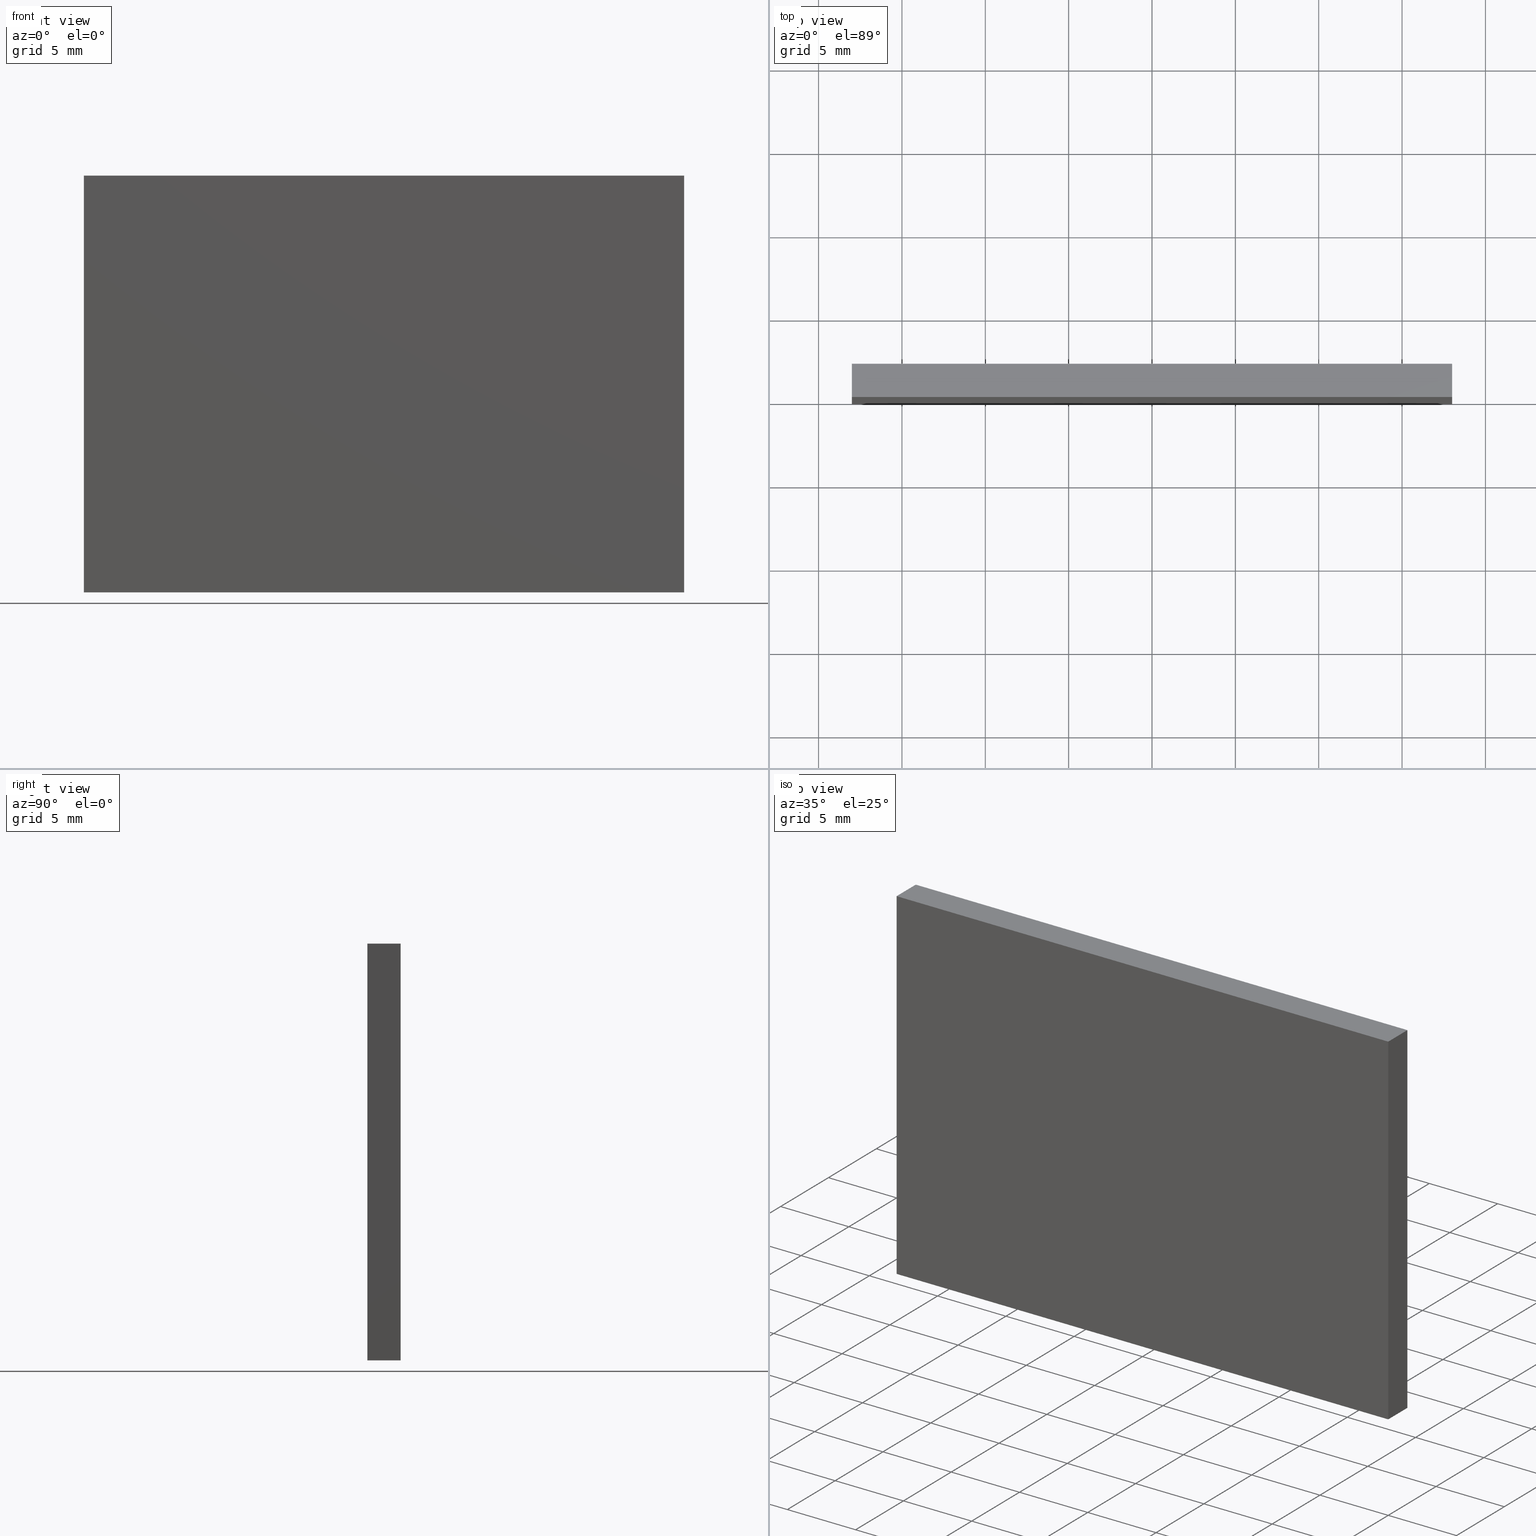
[diagram: canonical four-view strip — front | top / right | iso, engineering-drawing reading convention]
A machine part, canonical four-view strip (front | top / right | iso — engineering-drawing reading convention). The complete STEP part file that produces these views, byte-faithful:
ISO-10303-21;
HEADER;
FILE_DESCRIPTION (( 'STEP AP214' ),
    '1' );
FILE_NAME ('238530.STEP',
    '2019-07-31T07:25:36',
    ( 'user' ),
    ( '΢���й�' ),
    'SwSTEP 2.0',
    'SolidWorks 2016',
    '' );
FILE_SCHEMA (( 'AUTOMOTIVE_DESIGN' ));
ENDSEC;

DATA;
#1 = PRODUCT_DEFINITION ( 'δ֪', '', #170, #173 ) ;
#2 = VECTOR ( 'NONE', #142, 1000.000000000000000 ) ;
#3 = VERTEX_POINT ( 'NONE', #62 ) ;
#4 = EDGE_CURVE ( 'NONE', #95, #122, #116, .T. ) ;
#5 = DIRECTION ( 'NONE',  ( 0.0000000000000000000, 1.000000000000000000, 0.0000000000000000000 ) ) ;
#6 = STYLED_ITEM ( 'NONE', ( #155 ), #44 ) ;
#7 = DIRECTION ( 'NONE',  ( -1.000000000000000000, 0.0000000000000000000, 2.775557561562891400E-016 ) ) ;
#8 = ORIENTED_EDGE ( 'NONE', *, *, #138, .T. ) ;
#9 =( LENGTH_UNIT ( ) NAMED_UNIT ( * ) SI_UNIT ( .MILLI., .METRE. ) );
#10 = ADVANCED_FACE ( 'NONE', ( #156 ), #88, .F. ) ;
#11 = PLANE ( 'NONE',  #83 ) ;
#12 = FACE_OUTER_BOUND ( 'NONE', #63, .T. ) ;
#13 = CARTESIAN_POINT ( 'NONE',  ( -18.00000000000000400, 2.000000000000000000, 12.50000000000000200 ) ) ;
#14 = FILL_AREA_STYLE_COLOUR ( '', #37 ) ;
#15 = EDGE_LOOP ( 'NONE', ( #98, #82, #75, #50 ) ) ;
#16 = PRESENTATION_STYLE_ASSIGNMENT (( #186 ) ) ;
#17 = VECTOR ( 'NONE', #43, 1000.000000000000000 ) ;
#18 = ORIENTED_EDGE ( 'NONE', *, *, #125, .F. ) ;
#19 = AXIS2_PLACEMENT_3D ( 'NONE', #151, #45, #133 ) ;
#20 = LINE ( 'NONE', #89, #17 ) ;
#21 = VERTEX_POINT ( 'NONE', #117 ) ;
#22 = DIRECTION ( 'NONE',  ( 0.0000000000000000000, 0.0000000000000000000, 1.000000000000000000 ) ) ;
#23 = DIRECTION ( 'NONE',  ( -0.0000000000000000000, -1.000000000000000000, -0.0000000000000000000 ) ) ;
#24 = LINE ( 'NONE', #72, #107 ) ;
#25 = DIRECTION ( 'NONE',  ( -1.000000000000000000, -0.0000000000000000000, -0.0000000000000000000 ) ) ;
#26 = DIRECTION ( 'NONE',  ( -2.775557561562891400E-016, -0.0000000000000000000, -1.000000000000000000 ) ) ;
#27 = UNCERTAINTY_MEASURE_WITH_UNIT (LENGTH_MEASURE( 1.000000000000000100E-005 ), #9, 'distance_accuracy_value', 'NONE');
#28 = CARTESIAN_POINT ( 'NONE',  ( -18.00000000000000400, 2.000000000000000000, -12.49999999999999800 ) ) ;
#29 = DIRECTION ( 'NONE',  ( -1.000000000000000000, -0.0000000000000000000, -0.0000000000000000000 ) ) ;
#30 = ORIENTED_EDGE ( 'NONE', *, *, #51, .F. ) ;
#31 = SURFACE_SIDE_STYLE ('',( #111 ) ) ;
#32 = DIRECTION ( 'NONE',  ( 1.000000000000000000, 0.0000000000000000000, 0.0000000000000000000 ) ) ;
#33 =( GEOMETRIC_REPRESENTATION_CONTEXT ( 3 ) GLOBAL_UNCERTAINTY_ASSIGNED_CONTEXT ( ( #168 ) ) GLOBAL_UNIT_ASSIGNED_CONTEXT ( ( #91, #200, #106 ) ) REPRESENTATION_CONTEXT ( 'NONE', 'WORKASPACE' ) );
#34 = ORIENTED_EDGE ( 'NONE', *, *, #4, .F. ) ;
#35 = SHAPE_DEFINITION_REPRESENTATION ( #153, #77 ) ;
#36 = LINE ( 'NONE', #60, #110 ) ;
#37 = COLOUR_RGB ( '',1.000000000000000000, 1.000000000000000000, 1.000000000000000000 ) ;
#38 = EDGE_CURVE ( 'NONE', #21, #152, #195, .T. ) ;
#39 = CARTESIAN_POINT ( 'NONE',  ( -18.00000000000000400, 0.0000000000000000000, -12.49999999999999800 ) ) ;
#40 = PLANE ( 'NONE',  #123 ) ;
#41 = ORIENTED_EDGE ( 'NONE', *, *, #47, .F. ) ;
#42 = EDGE_LOOP ( 'NONE', ( #167, #18, #188, #34 ) ) ;
#43 = DIRECTION ( 'NONE',  ( 0.0000000000000000000, 0.0000000000000000000, 1.000000000000000000 ) ) ;
#44 = MANIFOLD_SOLID_BREP ( '͹̨-����1', #79 ) ;
#45 = DIRECTION ( 'NONE',  ( 1.000000000000000000, 0.0000000000000000000, 0.0000000000000000000 ) ) ;
#46 = PRESENTATION_LAYER_ASSIGNMENT (  '', '', ( #76 ) ) ;
#47 = EDGE_CURVE ( 'NONE', #162, #122, #137, .T. ) ;
#48 = SURFACE_SIDE_STYLE ('',( #189 ) ) ;
#49 = APPLICATION_CONTEXT ( 'automotive_design' ) ;
#50 = ORIENTED_EDGE ( 'NONE', *, *, #67, .T. ) ;
#51 = EDGE_CURVE ( 'NONE', #162, #21, #20, .T. ) ;
#52 = EDGE_LOOP ( 'NONE', ( #85, #109, #185, #139 ) ) ;
#53 = LINE ( 'NONE', #39, #132 ) ;
#54 = MECHANICAL_DESIGN_GEOMETRIC_PRESENTATION_REPRESENTATION (  '', ( #76 ), #33 ) ;
#55 = FILL_AREA_STYLE_COLOUR ( '', #174 ) ;
#56 = ORIENTED_EDGE ( 'NONE', *, *, #67, .F. ) ;
#57 = ADVANCED_FACE ( 'NONE', ( #59 ), #194, .F. ) ;
#58 =( NAMED_UNIT ( * ) SI_UNIT ( $, .STERADIAN. ) SOLID_ANGLE_UNIT ( ) );
#59 = FACE_OUTER_BOUND ( 'NONE', #42, .T. ) ;
#60 = CARTESIAN_POINT ( 'NONE',  ( 17.99999999999999600, 2.000000000000000000, -12.49999999999999800 ) ) ;
#61 = CARTESIAN_POINT ( 'NONE',  ( -18.00000000000000400, 0.0000000000000000000, -12.49999999999999800 ) ) ;
#62 = CARTESIAN_POINT ( 'NONE',  ( 17.99999999999999600, 2.000000000000000000, -12.49999999999999800 ) ) ;
#63 = EDGE_LOOP ( 'NONE', ( #176, #8, #104, #112 ) ) ;
#64 = MECHANICAL_DESIGN_GEOMETRIC_PRESENTATION_REPRESENTATION (  '', ( #6 ), #69 ) ;
#65 = ORIENTED_EDGE ( 'NONE', *, *, #138, .F. ) ;
#66 = ORIENTED_EDGE ( 'NONE', *, *, #47, .T. ) ;
#67 = EDGE_CURVE ( 'NONE', #21, #171, #181, .T. ) ;
#68 = DIRECTION ( 'NONE',  ( 0.0000000000000000000, -0.0000000000000000000, 1.000000000000000000 ) ) ;
#69 =( GEOMETRIC_REPRESENTATION_CONTEXT ( 3 ) GLOBAL_UNCERTAINTY_ASSIGNED_CONTEXT ( ( #81 ) ) GLOBAL_UNIT_ASSIGNED_CONTEXT ( ( #184, #145, #58 ) ) REPRESENTATION_CONTEXT ( 'NONE', 'WORKASPACE' ) );
#70 = DIRECTION ( 'NONE',  ( 0.0000000000000000000, 1.000000000000000000, 0.0000000000000000000 ) ) ;
#71 = VECTOR ( 'NONE', #25, 1000.000000000000000 ) ;
#72 = CARTESIAN_POINT ( 'NONE',  ( 18.00000000000000400, 2.000000000000000000, 12.50000000000000200 ) ) ;
#73 = ADVANCED_FACE ( 'NONE', ( #93 ), #40, .F. ) ;
#74 = SURFACE_STYLE_USAGE ( .BOTH. , #31 ) ;
#75 = ORIENTED_EDGE ( 'NONE', *, *, #38, .F. ) ;
#76 = STYLED_ITEM ( 'NONE', ( #16 ), #77 ) ;
#77 = ADVANCED_BREP_SHAPE_REPRESENTATION ( '238530', ( #44, #190 ), #94 ) ;
#78 = VECTOR ( 'NONE', #163, 1000.000000000000000 ) ;
#79 = CLOSED_SHELL ( 'NONE', ( #73, #87, #10, #147, #115, #57 ) ) ;
#80 = VECTOR ( 'NONE', #29, 1000.000000000000000 ) ;
#81 = UNCERTAINTY_MEASURE_WITH_UNIT (LENGTH_MEASURE( 1.000000000000000100E-005 ), #184, 'distance_accuracy_value', 'NONE');
#82 = ORIENTED_EDGE ( 'NONE', *, *, #158, .F. ) ;
#83 = AXIS2_PLACEMENT_3D ( 'NONE', #180, #197, #118 ) ;
#84 = CARTESIAN_POINT ( 'NONE',  ( -18.00000000000000400, 0.0000000000000000000, 12.50000000000000200 ) ) ;
#85 = ORIENTED_EDGE ( 'NONE', *, *, #150, .T. ) ;
#86 = DIRECTION ( 'NONE',  ( -0.0000000000000000000, -1.000000000000000000, -0.0000000000000000000 ) ) ;
#87 = ADVANCED_FACE ( 'NONE', ( #169 ), #192, .F. ) ;
#88 = PLANE ( 'NONE',  #19 ) ;
#89 = CARTESIAN_POINT ( 'NONE',  ( -18.00000000000000400, 2.000000000000000000, -12.49999999999999800 ) ) ;
#90 = CARTESIAN_POINT ( 'NONE',  ( -18.00000000000000400, 2.000000000000000000, -12.49999999999999800 ) ) ;
#91 =( LENGTH_UNIT ( ) NAMED_UNIT ( * ) SI_UNIT ( .MILLI., .METRE. ) );
#92 = ORIENTED_EDGE ( 'NONE', *, *, #108, .T. ) ;
#93 = FACE_OUTER_BOUND ( 'NONE', #52, .T. ) ;
#94 =( GEOMETRIC_REPRESENTATION_CONTEXT ( 3 ) GLOBAL_UNCERTAINTY_ASSIGNED_CONTEXT ( ( #27 ) ) GLOBAL_UNIT_ASSIGNED_CONTEXT ( ( #9, #146, #120 ) ) REPRESENTATION_CONTEXT ( 'NONE', 'WORKASPACE' ) );
#95 = VERTEX_POINT ( 'NONE', #177 ) ;
#96 = LINE ( 'NONE', #164, #71 ) ;
#97 = VECTOR ( 'NONE', #114, 1000.000000000000000 ) ;
#98 = ORIENTED_EDGE ( 'NONE', *, *, #125, .T. ) ;
#99 = CARTESIAN_POINT ( 'NONE',  ( 0.0000000000000000000, 2.000000000000000000, 0.0000000000000000000 ) ) ;
#100 = CARTESIAN_POINT ( 'NONE',  ( 17.99999999999999600, 2.000000000000000000, -12.49999999999999800 ) ) ;
#101 = CARTESIAN_POINT ( 'NONE',  ( -18.00000000000000400, 0.0000000000000000000, 12.50000000000000200 ) ) ;
#102 = DIRECTION ( 'NONE',  ( 1.000000000000000000, 0.0000000000000000000, 0.0000000000000000000 ) ) ;
#103 = AXIS2_PLACEMENT_3D ( 'NONE', #99, #5, #68 ) ;
#104 = ORIENTED_EDGE ( 'NONE', *, *, #51, .T. ) ;
#105 = FILL_AREA_STYLE ('',( #14 ) ) ;
#106 =( NAMED_UNIT ( * ) SI_UNIT ( $, .STERADIAN. ) SOLID_ANGLE_UNIT ( ) );
#107 = VECTOR ( 'NONE', #86, 1000.000000000000000 ) ;
#108 = EDGE_CURVE ( 'NONE', #122, #171, #53, .T. ) ;
#109 = ORIENTED_EDGE ( 'NONE', *, *, #131, .F. ) ;
#110 = VECTOR ( 'NONE', #148, 1000.000000000000000 ) ;
#111 = SURFACE_STYLE_FILL_AREA ( #105 ) ;
#112 = ORIENTED_EDGE ( 'NONE', *, *, #38, .T. ) ;
#113 = DIRECTION ( 'NONE',  ( 2.775557561562891400E-016, 0.0000000000000000000, 1.000000000000000000 ) ) ;
#114 = DIRECTION ( 'NONE',  ( -0.0000000000000000000, -1.000000000000000000, -0.0000000000000000000 ) ) ;
#115 = ADVANCED_FACE ( 'NONE', ( #12 ), #126, .T. ) ;
#116 = LINE ( 'NONE', #61, #80 ) ;
#117 = CARTESIAN_POINT ( 'NONE',  ( -18.00000000000000400, 2.000000000000000000, 12.50000000000000200 ) ) ;
#118 = DIRECTION ( 'NONE',  ( -1.000000000000000000, 0.0000000000000000000, -0.0000000000000000000 ) ) ;
#119 = EDGE_CURVE ( 'NONE', #152, #3, #193, .T. ) ;
#120 =( NAMED_UNIT ( * ) SI_UNIT ( $, .STERADIAN. ) SOLID_ANGLE_UNIT ( ) );
#121 = DIRECTION ( 'NONE',  ( 0.0000000000000000000, 0.0000000000000000000, 1.000000000000000000 ) ) ;
#122 = VERTEX_POINT ( 'NONE', #175 ) ;
#123 = AXIS2_PLACEMENT_3D ( 'NONE', #100, #7, #113 ) ;
#124 = VERTEX_POINT ( 'NONE', #159 ) ;
#125 = EDGE_CURVE ( 'NONE', #171, #124, #130, .T. ) ;
#126 = PLANE ( 'NONE',  #103 ) ;
#127 = ORIENTED_EDGE ( 'NONE', *, *, #131, .T. ) ;
#128 = DIRECTION ( 'NONE',  ( 0.0000000000000000000, 0.0000000000000000000, 1.000000000000000000 ) ) ;
#129 = CARTESIAN_POINT ( 'NONE',  ( 17.99999999999999600, 2.000000000000000000, -12.49999999999999800 ) ) ;
#130 = LINE ( 'NONE', #84, #2 ) ;
#131 = EDGE_CURVE ( 'NONE', #3, #95, #36, .T. ) ;
#132 = VECTOR ( 'NONE', #22, 1000.000000000000000 ) ;
#133 = DIRECTION ( 'NONE',  ( 0.0000000000000000000, 0.0000000000000000000, -1.000000000000000000 ) ) ;
#134 = FILL_AREA_STYLE ('',( #55 ) ) ;
#135 = EDGE_LOOP ( 'NONE', ( #191, #41, #65, #127 ) ) ;
#136 = PRODUCT_CONTEXT ( 'NONE', #182, 'mechanical' ) ;
#137 = LINE ( 'NONE', #28, #97 ) ;
#138 = EDGE_CURVE ( 'NONE', #3, #162, #96, .T. ) ;
#139 = ORIENTED_EDGE ( 'NONE', *, *, #158, .T. ) ;
#140 = EDGE_LOOP ( 'NONE', ( #92, #56, #30, #66 ) ) ;
#141 = AXIS2_PLACEMENT_3D ( 'NONE', #143, #128, #160 ) ;
#142 = DIRECTION ( 'NONE',  ( 1.000000000000000000, 0.0000000000000000000, 0.0000000000000000000 ) ) ;
#143 = CARTESIAN_POINT ( 'NONE',  ( -18.00000000000000400, 2.000000000000000000, -12.49999999999999800 ) ) ;
#144 = FACE_OUTER_BOUND ( 'NONE', #15, .T. ) ;
#145 =( NAMED_UNIT ( * ) PLANE_ANGLE_UNIT ( ) SI_UNIT ( $, .RADIAN. ) );
#146 =( NAMED_UNIT ( * ) PLANE_ANGLE_UNIT ( ) SI_UNIT ( $, .RADIAN. ) );
#147 = ADVANCED_FACE ( 'NONE', ( #144 ), #11, .F. ) ;
#148 = DIRECTION ( 'NONE',  ( -0.0000000000000000000, -1.000000000000000000, -0.0000000000000000000 ) ) ;
#149 = PRODUCT ( '238530', '238530', '', ( #136 ) ) ;
#150 = EDGE_CURVE ( 'NONE', #124, #95, #201, .T. ) ;
#151 = CARTESIAN_POINT ( 'NONE',  ( -18.00000000000000400, 2.000000000000000000, -12.49999999999999800 ) ) ;
#152 = VERTEX_POINT ( 'NONE', #179 ) ;
#153 = PRODUCT_DEFINITION_SHAPE ( 'NONE', 'NONE',  #1 ) ;
#154 = APPLICATION_PROTOCOL_DEFINITION ( 'draft international standard', 'automotive_design', 1998, #49 ) ;
#155 = PRESENTATION_STYLE_ASSIGNMENT (( #74 ) ) ;
#156 = FACE_OUTER_BOUND ( 'NONE', #140, .T. ) ;
#157 = PRESENTATION_LAYER_ASSIGNMENT (  '', '', ( #6 ) ) ;
#158 = EDGE_CURVE ( 'NONE', #152, #124, #24, .T. ) ;
#159 = CARTESIAN_POINT ( 'NONE',  ( 18.00000000000000400, 0.0000000000000000000, 12.50000000000000200 ) ) ;
#160 = DIRECTION ( 'NONE',  ( 1.000000000000000000, 0.0000000000000000000, -0.0000000000000000000 ) ) ;
#161 = CARTESIAN_POINT ( 'NONE',  ( -18.00000000000000400, 2.000000000000000000, 12.50000000000000200 ) ) ;
#162 = VERTEX_POINT ( 'NONE', #90 ) ;
#163 = DIRECTION ( 'NONE',  ( -2.775557561562891400E-016, -0.0000000000000000000, -1.000000000000000000 ) ) ;
#164 = CARTESIAN_POINT ( 'NONE',  ( -18.00000000000000400, 2.000000000000000000, -12.49999999999999800 ) ) ;
#165 = CARTESIAN_POINT ( 'NONE',  ( 0.0000000000000000000, 0.0000000000000000000, 0.0000000000000000000 ) ) ;
#166 = AXIS2_PLACEMENT_3D ( 'NONE', #198, #70, #178 ) ;
#167 = ORIENTED_EDGE ( 'NONE', *, *, #150, .F. ) ;
#168 = UNCERTAINTY_MEASURE_WITH_UNIT (LENGTH_MEASURE( 1.000000000000000100E-005 ), #91, 'distance_accuracy_value', 'NONE');
#169 = FACE_OUTER_BOUND ( 'NONE', #135, .T. ) ;
#170 = PRODUCT_DEFINITION_FORMATION_WITH_SPECIFIED_SOURCE ( '�κ�', '', #149, .NOT_KNOWN. ) ;
#171 = VERTEX_POINT ( 'NONE', #101 ) ;
#172 = VECTOR ( 'NONE', #23, 1000.000000000000000 ) ;
#173 = PRODUCT_DEFINITION_CONTEXT ( 'detailed design', #49, 'design' ) ;
#174 = COLOUR_RGB ( '',1.000000000000000000, 1.000000000000000000, 1.000000000000000000 ) ;
#175 = CARTESIAN_POINT ( 'NONE',  ( -18.00000000000000400, 0.0000000000000000000, -12.49999999999999800 ) ) ;
#176 = ORIENTED_EDGE ( 'NONE', *, *, #119, .T. ) ;
#177 = CARTESIAN_POINT ( 'NONE',  ( 17.99999999999999600, 0.0000000000000000000, -12.49999999999999800 ) ) ;
#178 = DIRECTION ( 'NONE',  ( 0.0000000000000000000, -0.0000000000000000000, 1.000000000000000000 ) ) ;
#179 = CARTESIAN_POINT ( 'NONE',  ( 18.00000000000000400, 2.000000000000000000, 12.50000000000000200 ) ) ;
#180 = CARTESIAN_POINT ( 'NONE',  ( -18.00000000000000400, 2.000000000000000000, 12.50000000000000200 ) ) ;
#181 = LINE ( 'NONE', #161, #172 ) ;
#182 = APPLICATION_CONTEXT ( 'automotive_design' ) ;
#183 = PRODUCT_RELATED_PRODUCT_CATEGORY ( 'part', '', ( #149 ) ) ;
#184 =( LENGTH_UNIT ( ) NAMED_UNIT ( * ) SI_UNIT ( .MILLI., .METRE. ) );
#185 = ORIENTED_EDGE ( 'NONE', *, *, #119, .F. ) ;
#186 = SURFACE_STYLE_USAGE ( .BOTH. , #48 ) ;
#187 = VECTOR ( 'NONE', #26, 1000.000000000000000 ) ;
#188 = ORIENTED_EDGE ( 'NONE', *, *, #108, .F. ) ;
#189 = SURFACE_STYLE_FILL_AREA ( #134 ) ;
#190 = AXIS2_PLACEMENT_3D ( 'NONE', #165, #121, #32 ) ;
#191 = ORIENTED_EDGE ( 'NONE', *, *, #4, .T. ) ;
#192 = PLANE ( 'NONE',  #141 ) ;
#193 = LINE ( 'NONE', #129, #187 ) ;
#194 = PLANE ( 'NONE',  #166 ) ;
#195 = LINE ( 'NONE', #13, #202 ) ;
#196 = CARTESIAN_POINT ( 'NONE',  ( 17.99999999999999600, 0.0000000000000000000, -12.49999999999999800 ) ) ;
#197 = DIRECTION ( 'NONE',  ( 0.0000000000000000000, 0.0000000000000000000, -1.000000000000000000 ) ) ;
#198 = CARTESIAN_POINT ( 'NONE',  ( 0.0000000000000000000, 0.0000000000000000000, 0.0000000000000000000 ) ) ;
#199 = APPLICATION_PROTOCOL_DEFINITION ( 'draft international standard', 'automotive_design', 1998, #182 ) ;
#200 =( NAMED_UNIT ( * ) PLANE_ANGLE_UNIT ( ) SI_UNIT ( $, .RADIAN. ) );
#201 = LINE ( 'NONE', #196, #78 ) ;
#202 = VECTOR ( 'NONE', #102, 1000.000000000000000 ) ;
ENDSEC;
END-ISO-10303-21;
